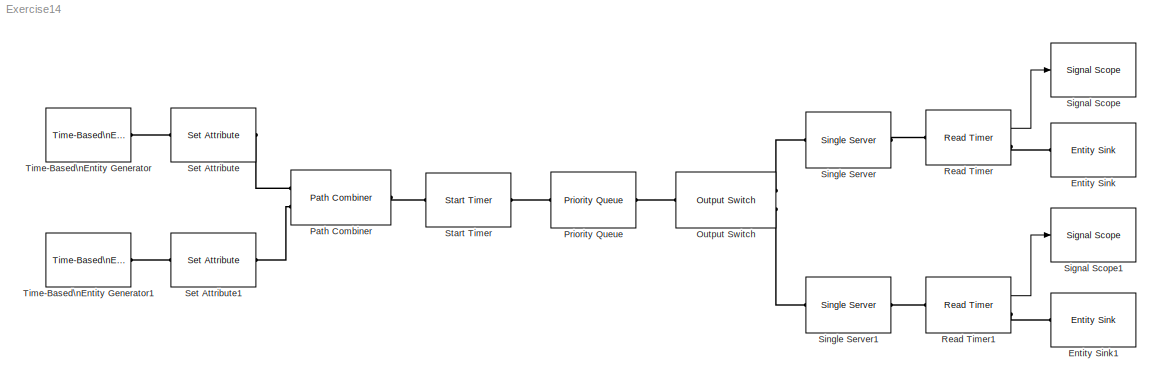
MODEL Exercise14
KIND model
BLOCK [Reference] Entity Sink  REF=simeventssink1/Entity Sink
  AvailableForArrivals = on
  FunctionWithSeparateData = off
  Ports = [0, 0, 0, 0, 0, 1]
  Priority = 1
  RTWMemSecDataConstants = Inherit from model
  RTWMemSecDataInternal = Inherit from model
  RTWMemSecDataParameters = Inherit from model
  RTWMemSecFuncExecute = Inherit from model
  RTWMemSecFuncInitTerm = Inherit from model
  ShowPortLabels = FromPortIcon
  SourceBlock = simeventssink1/Entity Sink
  SourceType = Entity Sink
  StatNumberArrived = Off
  SystemSampleTime = -1
  UserData = DataTag0
  UserDataPersistent = on
BLOCK [Reference] Entity Sink1  REF=simeventssink1/Entity Sink
  AvailableForArrivals = on
  FunctionWithSeparateData = off
  Ports = [0, 0, 0, 0, 0, 1]
  Priority = 1
  RTWMemSecDataConstants = Inherit from model
  RTWMemSecDataInternal = Inherit from model
  RTWMemSecDataParameters = Inherit from model
  RTWMemSecFuncExecute = Inherit from model
  RTWMemSecFuncInitTerm = Inherit from model
  ShowPortLabels = FromPortIcon
  SourceBlock = simeventssink1/Entity Sink
  SourceType = Entity Sink
  StatNumberArrived = Off
  SystemSampleTime = -1
  UserData = DataTag1
  UserDataPersistent = on
BLOCK [Reference] Output Switch  REF=simeventsrouting1/Output Switch
  AttributeName = ServiceTime
  EntityBufferOpt = off
  EvaluatedNumPorts = 2
  FunctionWithSeparateData = off
  InitialConditions = 1
  InitialConditionsOpt = off
  InitialSeed = 34567
  NumberOutputPorts = 2
  Ports = [0, 0, 0, 0, 0, 1, 2]
  Priority = 1
  PriorityOutputSwitchSelectPort = 4100
  RTWMemSecDataConstants = Inherit from model
  RTWMemSecDataInternal = Inherit from model
  RTWMemSecDataParameters = Inherit from model
  RTWMemSecFuncExecute = Inherit from model
  RTWMemSecFuncInitTerm = Inherit from model
  ShowPortLabels = FromPortIcon
  SourceBlock = simeventsrouting1/Output Switch
  SourceType = Output Switch
  SpecifyEventPriority = off
  StatLastDeparturePort = Off
  StatNumberDeparted = Off
  StatNumberTimedOut = Off
  StatPendingEntity = Off
  SwitchingCriterion = From attribute
  SystemSampleTime = -1
  TimeoutPortOpt = off
  UserData = DataTag2
  UserDataPersistent = on
BLOCK [Reference] Path Combiner  REF=simeventsrouting1/Path Combiner
  EvaluatedNumPorts = 2
  FunctionWithSeparateData = off
  InitialSeed = 45675
  InputPortPrecedence = IN1 port
  NumberInputPorts = 2
  Ports = [0, 0, 0, 0, 0, 2, 1]
  Priority = 1
  PriorityPathCombinerPortPrecedenceSelection = 4100
  RTWMemSecDataConstants = Inherit from model
  RTWMemSecDataInternal = Inherit from model
  RTWMemSecDataParameters = Inherit from model
  RTWMemSecFuncExecute = Inherit from model
  RTWMemSecFuncInitTerm = Inherit from model
  ShowPortLabels = FromPortIcon
  SourceBlock = simeventsrouting1/Path Combiner
  SourceType = Path Combiner
  SpecifyEventPriority = off
  StatLastArrivalPort = Off
  StatNumberDeparted = Off
  SystemSampleTime = -1
  UserData = DataTag3
  UserDataPersistent = on
BLOCK [Reference] Priority Queue  REF=simeventsqueue1/Priority Queue
  Capacity = 25
  EnableTOPort = off
  FunctionWithSeparateData = off
  Ports = [0, 0, 0, 0, 0, 1, 1]
  Priority = 1
  RTWMemSecDataConstants = Inherit from model
  RTWMemSecDataInternal = Inherit from model
  RTWMemSecDataParameters = Inherit from model
  RTWMemSecFuncExecute = Inherit from model
  RTWMemSecFuncInitTerm = Inherit from model
  ShowPortLabels = FromPortIcon
  SortingAttributeName = ServiceTime
  SortingDirection = Descending
  SourceBlock = simeventsqueue1/Priority Queue
  SourceType = Priority Queue
  StatAverageQueueLength = Off
  StatAverageWait = Off
  StatNumberDeparted = Off
  StatNumberInBlock = Off
  StatNumberTimedout = Off
  StatPendingEntity = Off
  SystemSampleTime = -1
  UserData = DataTag4
  UserDataPersistent = on
BLOCK [Reference] Read Timer  REF=simeventstiming1/Read Timer
  FunctionWithSeparateData = off
  Ports = [0, 1, 0, 0, 0, 1, 1]
  Priority = 0
  RTWMemSecDataConstants = Inherit from model
  RTWMemSecDataInternal = Inherit from model
  RTWMemSecDataParameters = Inherit from model
  RTWMemSecFuncExecute = Inherit from model
  RTWMemSecFuncInitTerm = Inherit from model
  ShowPortLabels = FromPortIcon
  SourceBlock = simeventstiming1/Read Timer
  SourceType = Read Timer
  StatAverageTimeElapsed = On
  StatNumberDeparted = Off
  StatTimeElapsed = Off
  StatTimerNumberDeparted = Off
  SystemSampleTime = -1
  TimerModeOption = Error
  TimerStop = off
  TimerTag = T1
  UserData = DataTag5
  UserDataPersistent = on
BLOCK [Reference] Read Timer1  REF=simeventstiming1/Read Timer
  FunctionWithSeparateData = off
  Ports = [0, 1, 0, 0, 0, 1, 1]
  Priority = 0
  RTWMemSecDataConstants = Inherit from model
  RTWMemSecDataInternal = Inherit from model
  RTWMemSecDataParameters = Inherit from model
  RTWMemSecFuncExecute = Inherit from model
  RTWMemSecFuncInitTerm = Inherit from model
  ShowPortLabels = FromPortIcon
  SourceBlock = simeventstiming1/Read Timer
  SourceType = Read Timer
  StatAverageTimeElapsed = On
  StatNumberDeparted = Off
  StatTimeElapsed = Off
  StatTimerNumberDeparted = Off
  SystemSampleTime = -1
  TimerModeOption = Error
  TimerStop = off
  TimerTag = T1
  UserData = DataTag6
  UserDataPersistent = on
BLOCK [Reference] Set Attribute  REF=simeventsattributes2/Set Attribute
  AttributeCreate = on
  AttributeFrom = Dialog|Dialog
  AttributeName = ServiceTime|Switch
  AttributeTreatAsVector = 1|1
  AttributeValue = 1|1
  DialogController = des_ddg_create
  DialogControllerArgs = DataTag8
  EvaluatedAttributeValue = {1;1}
  FunctionWithSeparateData = off
  Ports = [0, 0, 0, 0, 0, 1, 1]
  Priority = 1
  RTWMemSecDataConstants = Inherit from model
  RTWMemSecDataInternal = Inherit from model
  RTWMemSecDataParameters = Inherit from model
  RTWMemSecFuncExecute = Inherit from model
  RTWMemSecFuncInitTerm = Inherit from model
  ShowPortLabels = FromPortIcon
  SourceBlock = simeventsattributes2/Set Attribute
  SourceType = Set Attribute
  StatNumberDeparted = Off
  SystemSampleTime = -1
  UserData = DataTag7
  UserDataPersistent = on
BLOCK [Reference] Set Attribute1  REF=simeventsattributes2/Set Attribute
  AttributeCreate = on
  AttributeFrom = Dialog|Dialog
  AttributeName = ServiceTime|Switch
  AttributeTreatAsVector = 1|1
  AttributeValue = 2|2
  DialogController = des_ddg_create
  DialogControllerArgs = DataTag10
  EvaluatedAttributeValue = {2;2}
  FunctionWithSeparateData = off
  Ports = [0, 0, 0, 0, 0, 1, 1]
  Priority = 1
  RTWMemSecDataConstants = Inherit from model
  RTWMemSecDataInternal = Inherit from model
  RTWMemSecDataParameters = Inherit from model
  RTWMemSecFuncExecute = Inherit from model
  RTWMemSecFuncInitTerm = Inherit from model
  ShowPortLabels = FromPortIcon
  SourceBlock = simeventsattributes2/Set Attribute
  SourceType = Set Attribute
  StatNumberDeparted = Off
  SystemSampleTime = -1
  UserData = DataTag9
  UserDataPersistent = on
BLOCK [Reference] Signal Scope  REF=simeventssink1/Signal Scope
  AttributeNameX = Count
  AttributeNameY = Count
  AxisGrid = on
  AxisLegend = off
  AxisZoom = off
  DataPointsLimit = 10000
  DataStoreOption = Limited
  EnableEntityOutport = on
  FigurePosition = des_figposition([5 60 25 25])
  FunctionWithSeparateData = off
  InputType = Signal
  LineColors = b
  LineMarkers = .
  LineStyles = -
  NumInputs = 1
  OpenScopeAtSimStart = on
  PlotType = Continuous
  Ports = [1]
  Priority = 1
  RTWMemSecDataConstants = Inherit from model
  RTWMemSecDataInternal = Inherit from model
  RTWMemSecDataParameters = Inherit from model
  RTWMemSecFuncExecute = Inherit from model
  RTWMemSecFuncInitTerm = Inherit from model
  ShowCountPlotted = off
  ShowPortLabels = FromPortIcon
  ShowToolbar = on
  SourceBlock = simeventssink1/Signal Scope
  SourceType = Signal Scope
  StatNumberArrived = Off
  SystemSampleTime = -1
  Title = Average System Time for Nonpreferred Customers
  UserData = DataTag11
  UserDataPersistent = on
  XInputOptionEntity = Event time
  XInputOptionSignal = Event time
  XLabel = Simulation Time
  XLimitExceededOption = Keep axis limits unchanged
  XMax = 2000
  XMin = 0
  YLabel = Average System Time
  YLimitExceededOption = Stretch axis limits
  YMax = 10
  YMin = 0
BLOCK [Reference] Signal Scope1  REF=simeventssink1/Signal Scope
  AttributeNameX = Count
  AttributeNameY = Count
  AxisGrid = on
  AxisLegend = off
  AxisZoom = off
  DataPointsLimit = 10000
  DataStoreOption = Limited
  EnableEntityOutport = on
  FigurePosition = des_figposition([5 60 25 25])
  FunctionWithSeparateData = off
  InputType = Signal
  LineColors = b
  LineMarkers = .
  LineStyles = -
  NumInputs = 1
  OpenScopeAtSimStart = on
  PlotType = Continuous
  Ports = [1]
  Priority = 1
  RTWMemSecDataConstants = Inherit from model
  RTWMemSecDataInternal = Inherit from model
  RTWMemSecDataParameters = Inherit from model
  RTWMemSecFuncExecute = Inherit from model
  RTWMemSecFuncInitTerm = Inherit from model
  ShowCountPlotted = off
  ShowPortLabels = FromPortIcon
  ShowToolbar = on
  SourceBlock = simeventssink1/Signal Scope
  SourceType = Signal Scope
  StatNumberArrived = Off
  SystemSampleTime = -1
  Title = Average System Time for Preferred Customers
  UserData = DataTag12
  UserDataPersistent = on
  XInputOptionEntity = Event time
  XInputOptionSignal = Event time
  XLabel = Simulation Time
  XLimitExceededOption = Keep axis limits unchanged
  XMax = 2000
  XMin = 0
  YLabel = Average System Time
  YLimitExceededOption = Stretch axis limits
  YMax = 10
  YMin = 0
BLOCK [Reference] Single Server  REF=simeventsserver1/Single Server
  AttributeName = ServiceTime
  CreateAttribute = on
  EnableTOPort = off
  FunctionWithSeparateData = off
  PermitPreemption = off
  Ports = [0, 0, 0, 0, 0, 1, 1]
  Priority = 1
  PriorityServiceCompletion = 500
  RTWMemSecDataConstants = Inherit from model
  RTWMemSecDataInternal = Inherit from model
  RTWMemSecDataParameters = Inherit from model
  RTWMemSecFuncExecute = Inherit from model
  RTWMemSecFuncInitTerm = Inherit from model
  ResidualAttributeName = ResidualServiceTime
  ServiceTime = 1
  ServiceTimeFrom = Attribute
  ShowPortLabels = FromPortIcon
  SortingAttributeName = PriorityAttributeName
  SortingDirection = Ascending
  SourceBlock = simeventsserver1/Single Server
  SourceType = Single Server
  StatAverageWait = Off
  StatNumberDeparted = Off
  StatNumberInBlock = Off
  StatNumberPreempted = Off
  StatNumberTimedout = Off
  StatPendingEntity = Off
  StatUtilization = Off
  SystemSampleTime = -1
  UserData = DataTag13
  UserDataPersistent = on
  WriteToAttribute = off
BLOCK [Reference] Single Server1  REF=simeventsserver1/Single Server
  AttributeName = ServiceTime
  CreateAttribute = on
  EnableTOPort = off
  FunctionWithSeparateData = off
  PermitPreemption = off
  Ports = [0, 0, 0, 0, 0, 1, 1]
  Priority = 1
  PriorityServiceCompletion = 500
  RTWMemSecDataConstants = Inherit from model
  RTWMemSecDataInternal = Inherit from model
  RTWMemSecDataParameters = Inherit from model
  RTWMemSecFuncExecute = Inherit from model
  RTWMemSecFuncInitTerm = Inherit from model
  ResidualAttributeName = ResidualServiceTime
  ServiceTime = 1
  ServiceTimeFrom = Attribute
  ShowPortLabels = FromPortIcon
  SortingAttributeName = PriorityAttributeName
  SortingDirection = Ascending
  SourceBlock = simeventsserver1/Single Server
  SourceType = Single Server
  StatAverageWait = Off
  StatNumberDeparted = Off
  StatNumberInBlock = Off
  StatNumberPreempted = Off
  StatNumberTimedout = Off
  StatPendingEntity = Off
  StatUtilization = Off
  SystemSampleTime = -1
  UserData = DataTag14
  UserDataPersistent = on
  WriteToAttribute = off
BLOCK [Reference] Start Timer  REF=simeventstiming1/Start Timer
  FunctionWithSeparateData = off
  Ports = [0, 0, 0, 0, 0, 1, 1]
  Priority = 0
  RTWMemSecDataConstants = Inherit from model
  RTWMemSecDataInternal = Inherit from model
  RTWMemSecDataParameters = Inherit from model
  RTWMemSecFuncExecute = Inherit from model
  RTWMemSecFuncInitTerm = Inherit from model
  ShowPortLabels = FromPortIcon
  SourceBlock = simeventstiming1/Start Timer
  SourceType = Start Timer
  StatNumberDeparted = Off
  SystemSampleTime = -1
  TimerStartedOption = Warn and continue
  TimerTag = T1
  UserData = DataTag15
  UserDataPersistent = on
BLOCK [Reference] Time-Based\nEntity Generator  REF=simeventsgenerators1/Entity Generators/Time-Based\nEntity Generator
  DialogController = des_ddg_create
  DialogControllerArgs = DataTag17
  Distribution = Exponential
  EntityType = Blank
  FunctionWithSeparateData = off
  GenerateEntitiesUpon = Intergeneration time from dialog
  GenerateEntityAtSimulationStart = on
  InitialSeed = 12345
  Maximum = 1
  Mean = 1
  Minimum = 0
  Period = 1
  Ports = [0, 0, 0, 0, 0, 0, 1]
  Priority = 1
  PriorityEntityGeneration = 300
  RTWMemSecDataConstants = Inherit from model
  RTWMemSecDataInternal = Inherit from model
  RTWMemSecDataParameters = Inherit from model
  RTWMemSecFuncExecute = Inherit from model
  RTWMemSecFuncInitTerm = Inherit from model
  ResponseWhenBlocked = Pause generation
  ResponseWhenUnblocked = Immediate restart
  ShowPortLabels = FromPortIcon
  SourceBlock = simeventsgenerators1/Entity Generators/Time-Based\nEntity Generator
  SourceType = Time-Based Entity Generator
  StatAverageIntergenerationTime = Off
  StatNumberDeparted = Off
  StatPendingEntity = Off
  SystemSampleTime = -1
  UserData = DataTag16
  UserDataPersistent = on
BLOCK [Reference] Time-Based\nEntity Generator1  REF=simeventsgenerators1/Entity Generators/Time-Based\nEntity Generator
  DialogController = des_ddg_create
  DialogControllerArgs = DataTag19
  Distribution = Exponential
  EntityType = Blank
  FunctionWithSeparateData = off
  GenerateEntitiesUpon = Intergeneration time from dialog
  GenerateEntityAtSimulationStart = on
  InitialSeed = 12345
  Maximum = 1
  Mean = 10
  Minimum = 0
  Period = 10
  Ports = [0, 0, 0, 0, 0, 0, 1]
  Priority = 1
  PriorityEntityGeneration = 300
  RTWMemSecDataConstants = Inherit from model
  RTWMemSecDataInternal = Inherit from model
  RTWMemSecDataParameters = Inherit from model
  RTWMemSecFuncExecute = Inherit from model
  RTWMemSecFuncInitTerm = Inherit from model
  ResponseWhenBlocked = Pause generation
  ResponseWhenUnblocked = Immediate restart
  ShowPortLabels = FromPortIcon
  SourceBlock = simeventsgenerators1/Entity Generators/Time-Based\nEntity Generator
  SourceType = Time-Based Entity Generator
  StatAverageIntergenerationTime = Off
  StatNumberDeparted = Off
  StatPendingEntity = Off
  SystemSampleTime = -1
  UserData = DataTag18
  UserDataPersistent = on
LINE Read Timer1:1 -> Signal Scope1:1
LINE Read Timer:1 -> Signal Scope:1
PLINE Entity Sink1:LConn1 -- Read Timer1:RConn1
PLINE Entity Sink:LConn1 -- Read Timer:RConn1
PLINE Output Switch:LConn1 -- Priority Queue:RConn1
PLINE Output Switch:RConn1 -- Single Server:LConn1
PLINE Output Switch:RConn2 -- Single Server1:LConn1
PLINE Path Combiner:LConn1 -- Set Attribute:RConn1
PLINE Path Combiner:LConn2 -- Set Attribute1:RConn1
PLINE Path Combiner:RConn1 -- Start Timer:LConn1
PLINE Priority Queue:LConn1 -- Start Timer:RConn1
PLINE Read Timer1:LConn1 -- Single Server1:RConn1
PLINE Read Timer:LConn1 -- Single Server:RConn1
PLINE Set Attribute1:LConn1 -- Time-Based\nEntity Generator1:RConn1
PLINE Set Attribute:LConn1 -- Time-Based\nEntity Generator:RConn1
